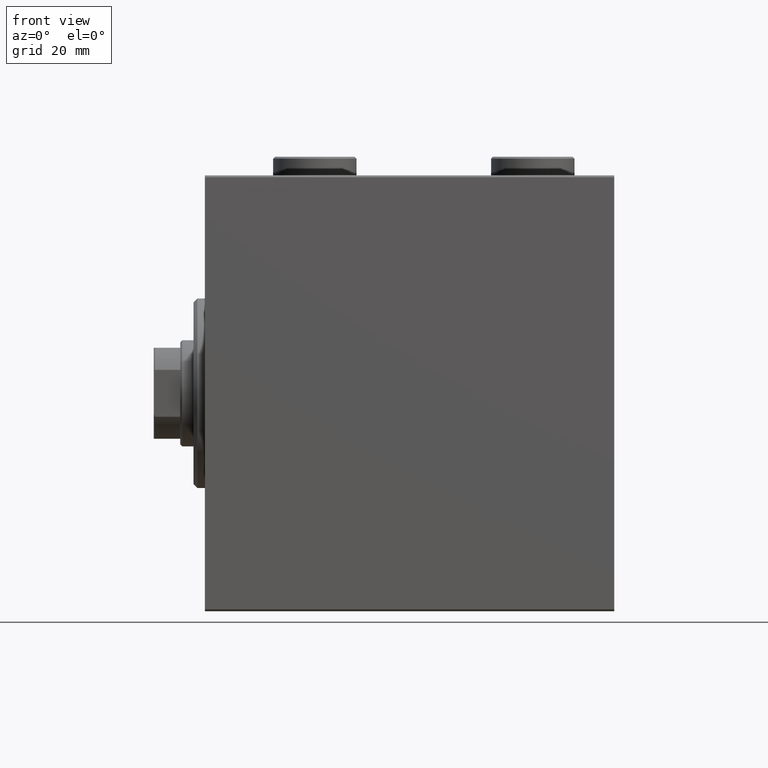
[diagram: clean part render]
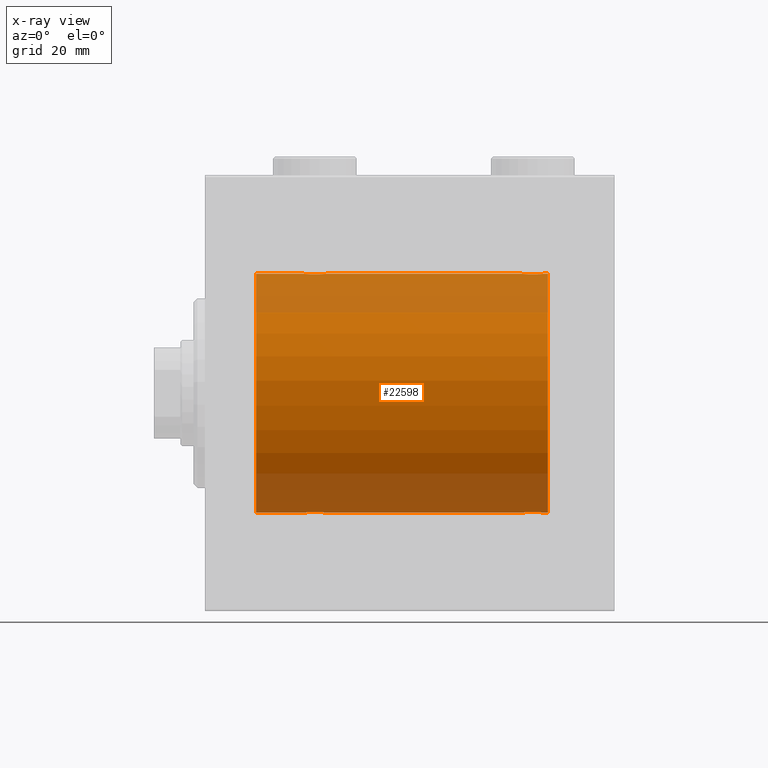
[diagram: x-ray — body ghosted, one internal face saturated and labeled with its STEP entity id]
A machine part, front view, then the same camera in x-ray: the body is ghosted and one INTERNAL B-rep face — a face not visible from any outside direction — is saturated and labeled: STEP entity #22598.
In plain terms, the highlighted cylindrical surface (partial cylindrical patch) has radius 31.5 mm, axis along (-1, -0, -0).
Its self-contained STEP definition (entity closure, byte-faithful):
#100 = CARTESIAN_POINT ( 'NONE',  ( 84.51856537126954549, -2.261012035264799103, -31.41905495618427224 ) ) ;
#257 = VERTEX_POINT ( 'NONE', #11740 ) ;
#324 = CARTESIAN_POINT ( 'NONE',  ( 83.89807859560842473, -1.506272792558335683, -31.46439306106695710 ) ) ;
#448 = CARTESIAN_POINT ( 'NONE',  ( 30.98143462873041898, -2.261012035264782227, 31.41905495618429356 ) ) ;
#500 = CARTESIAN_POINT ( 'NONE',  ( 90.50000000000000000, 0.000000000000000000, 31.50000000000000000 ) ) ;
#671 = CARTESIAN_POINT ( 'NONE',  ( 86.89114547339943329, -2.980809450819711159, 31.35867074198615967 ) ) ;
#689 = CARTESIAN_POINT ( 'NONE',  ( 31.92020662950040943, -0.7905881588836116691, 31.49214662150068378 ) ) ;
#810 = CARTESIAN_POINT ( 'NONE',  ( 26.00000000000000355, -4.219962720039639025E-15, -31.50000000000000000 ) ) ;
#1057 = B_SPLINE_CURVE_WITH_KNOTS ( 'NONE', 3,
 ( #32545, #14314, #42277, #35088, #7403, #21478, #24943, #42960, #3702, #17787, #21934, #14085, #14995, #28380, #29064, #7180, #3473, #10635, #24706, #11088, #39255, #28617, #18010, #38570, #448, #42737, #25163, #7626, #14774, #689, #21701, #39484 ),
 .UNSPECIFIED., .F., .F.,
 ( 4, 2, 2, 2, 2, 2, 2, 2, 2, 2, 2, 2, 2, 2, 2, 4 ),
 ( 0.009384682587134639611, 0.009971088165454038837, 0.01055749374377343980, 0.01114389932209284076, 0.01173030490041223999, 0.01231671047873163921, 0.01290311605705104017, 0.01348952163537044113, 0.01407592721368984036, 0.01466233279200923958, 0.01524873837032864055, 0.01583514394864804151, 0.01642154952696744247, 0.01700795510528683996, 0.01759436068360624092, 0.01876717184024503243 ),
 .UNSPECIFIED. ) ;
#1338 = VERTEX_POINT ( 'NONE', #42542 ) ;
#1548 = AXIS2_PLACEMENT_3D ( 'NONE', #41962, #13773, #24393 ) ;
#1628 = EDGE_LOOP ( 'NONE', ( #27902, #23269, #37690, #27047, #38304, #32164, #12303, #42352, #30345, #38890, #25175, #25027 ) ) ;
#2400 = VERTEX_POINT ( 'NONE', #6245 ) ;
#2920 = CARTESIAN_POINT ( 'NONE',  ( 29.96944455658522699, -2.845838211243328697, -31.37127560316187314 ) ) ;
#3120 = CARTESIAN_POINT ( 'NONE',  ( 84.24175498096732895, -1.984587626072091160, -31.43772577203671048 ) ) ;
#3349 = CARTESIAN_POINT ( 'NONE',  ( 86.89534111000095606, -2.980257240990069167, -31.35872356503797320 ) ) ;
#3473 = CARTESIAN_POINT ( 'NONE',  ( 28.79953541025904684, -2.999845816735297266, 31.35683219171744796 ) ) ;
#3562 = CARTESIAN_POINT ( 'NONE',  ( 90.50000000000000000, 0.000000000000000000, 0.000000000000000000 ) ) ;
#3702 = CARTESIAN_POINT ( 'NONE',  ( 26.73904537543869608, -1.981494824113328779, 31.43792153503155973 ) ) ;
#4165 = B_SPLINE_CURVE_WITH_KNOTS ( 'NONE', 3,
 ( #17545, #20551, #45725, #13158, #34146, #14063, #24236, #9471, #23539, #37626, #20077, #27457, #27227, #41337, #9694, #23997, #34616, #7834, #671, #24926, #10844, #35530, #18225, #42938, #39017, #18674, #35305, #17993, #38781, #32067, #42486, #25142 ),
 .UNSPECIFIED., .F., .F.,
 ( 4, 2, 2, 2, 2, 2, 2, 2, 2, 2, 2, 2, 2, 2, 2, 4 ),
 ( 0.009384682587134660428, 0.009971088165454063124, 0.01055749374377346582, 0.01114389932209286851, 0.01173030490041227121, 0.01231671047873167217, 0.01290311605705107313, 0.01348952163537047583, 0.01407592721368987679, 0.01466233279200927775, 0.01524873837032867871, 0.01583514394864807967, 0.01642154952696748410, 0.01700795510528688506, 0.01759436068360628602, 0.01876717184024507407 ),
 .UNSPECIFIED. ) ;
#4213 = LINE ( 'NONE', #18064, #13672 ) ;
#4292 = CARTESIAN_POINT ( 'NONE',  ( 26.61753127733370050, -1.833765390051043775, -31.44700610425689291 ) ) ;
#4657 = CARTESIAN_POINT ( 'NONE',  ( 89.50000000000001421, -0.1958045626907434222, -31.50000000000000711 ) ) ;
#4759 = CARTESIAN_POINT ( 'NONE',  ( 90.50000000000000000, 3.857637417314162689E-15, -31.50000000000000000 ) ) ;
#4772 = EDGE_CURVE ( 'NONE', #14931, #2400, #4165, .T. ) ;
#5317 = EDGE_CURVE ( 'NONE', #24467, #26726, #21473, .T. ) ;
#6172 = CARTESIAN_POINT ( 'NONE',  ( 26.00000000000000355, -2.117263226567934635E-23, 31.50000000000000000 ) ) ;
#6245 = CARTESIAN_POINT ( 'NONE',  ( 89.50000000000000000, -2.415502498297804861E-16, 31.50000000000000000 ) ) ;
#6265 = DIRECTION ( 'NONE',  ( -1.000000000000000000, -0.000000000000000000, -0.000000000000000000 ) ) ;
#6603 = CARTESIAN_POINT ( 'NONE',  ( 84.99901843703854354, -2.604888532024810299, -31.39229907792057972 ) ) ;
#6828 = CARTESIAN_POINT ( 'NONE',  ( 89.34660463742501690, -0.9669616078781998469, -31.48567319468627446 ) ) ;
#7180 = CARTESIAN_POINT ( 'NONE',  ( 28.60465888999904749, -2.980257240990054513, 31.35872356503797320 ) ) ;
#7403 = CARTESIAN_POINT ( 'NONE',  ( 26.15339536257501507, -0.9669616078781987367, 31.48567319468626735 ) ) ;
#7626 = CARTESIAN_POINT ( 'NONE',  ( 31.60192140439154684, -1.506272792558323470, 31.46439306106697131 ) ) ;
#7834 = CARTESIAN_POINT ( 'NONE',  ( 86.69582294439439352, -3.000152387858496805, 31.35680286115500337 ) ) ;
#7856 = CYLINDRICAL_SURFACE ( 'NONE', #18852, 31.50000000000000000 ) ;
#9381 = CARTESIAN_POINT ( 'NONE',  ( 90.50000000000000000, 3.857637417314162689E-15, -31.50000000000000000 ) ) ;
#9401 = CARTESIAN_POINT ( 'NONE',  ( 31.26095462456130747, -1.981494824113323894, -31.43792153503156683 ) ) ;
#9471 = CARTESIAN_POINT ( 'NONE',  ( 84.11498557723071201, -1.830470878313887884, 31.44719957596828053 ) ) ;
#9694 = CARTESIAN_POINT ( 'NONE',  ( 85.72118087357682725, -2.903733559410697662, 31.36590199989305106 ) ) ;
#9848 = CARTESIAN_POINT ( 'NONE',  ( 29.77881912642320827, -2.903733559410676790, -31.36590199989303684 ) ) ;
#10053 = CARTESIAN_POINT ( 'NONE',  ( 87.27881912642318696, -2.903733559410696774, -31.36590199989303684 ) ) ;
#10077 = CARTESIAN_POINT ( 'NONE',  ( 27.67134585312493655, -2.696917666262905300, -31.38442820068732786 ) ) ;
#10303 = CARTESIAN_POINT ( 'NONE',  ( 90.50000000000000000, 0.000000000000000000, 31.50000000000000000 ) ) ;
#10312 = CARTESIAN_POINT ( 'NONE',  ( 27.17295774629732819, -2.387531469909772941, -31.40957782495775419 ) ) ;
#10513 = CARTESIAN_POINT ( 'NONE',  ( 89.40419450738056639, -0.7775502215293851327, -31.49099686045559565 ) ) ;
#10523 = EDGE_CURVE ( 'NONE', #16547, #44811, #20230, .T. ) ;
#10635 = CARTESIAN_POINT ( 'NONE',  ( 29.19582294439440417, -3.000152387858486147, 31.35680286115499626 ) ) ;
#10844 = CARTESIAN_POINT ( 'NONE',  ( 87.46515729810640494, -2.847307171789044133, 31.37114183851420890 ) ) ;
#10949 = CARTESIAN_POINT ( 'NONE',  ( 13.49999999999999822, 0.000000000000000000, 31.50000000000000000 ) ) ;
#11088 = CARTESIAN_POINT ( 'NONE',  ( 29.77469094434372821, -2.904836261170106404, 31.36579955910873707 ) ) ;
#11614 = EDGE_CURVE ( 'NONE', #24507, #39819, #32657, .T. ) ;
#11721 = CARTESIAN_POINT ( 'NONE',  ( 90.50000000000000000, 0.000000000000000000, 31.50000000000000000 ) ) ;
#11740 = CARTESIAN_POINT ( 'NONE',  ( 83.49999999999998579, -1.354660151018645615E-14, -31.50000000000000000 ) ) ;
#11988 = CARTESIAN_POINT ( 'NONE',  ( 83.49999999999998579, -2.116947682205846230E-23, 31.50000000000000000 ) ) ;
#12303 = ORIENTED_EDGE ( 'NONE', *, *, #5317, .T. ) ;
#13042 = CARTESIAN_POINT ( 'NONE',  ( 32.00000000000000000, -3.906065418435112189E-16, 31.50000000000000000 ) ) ;
#13084 = CARTESIAN_POINT ( 'NONE',  ( 31.60417781274729165, -1.502389880412994261, -31.46458023642406587 ) ) ;
#13114 = VECTOR ( 'NONE', #21853, 1000.000000000000000 ) ;
#13158 = CARTESIAN_POINT ( 'NONE',  ( 83.59580549261943361, -0.7775502215293907948, 31.49099686045558855 ) ) ;
#13308 = CARTESIAN_POINT ( 'NONE',  ( 30.83043691487003102, -2.384935707362432211, -31.40977595730573668 ) ) ;
#13511 = CARTESIAN_POINT ( 'NONE',  ( 89.50000000000000000, 3.857637396143758955E-15, -31.50000000000000000 ) ) ;
#13536 = CARTESIAN_POINT ( 'NONE',  ( 31.69714238836700915, -1.328004386210300591, -31.47251238182141009 ) ) ;
#13672 = VECTOR ( 'NONE', #21991, 1000.000000000000000 ) ;
#13773 = DIRECTION ( 'NONE',  ( -1.000000000000000000, 0.000000000000000000, 0.000000000000000000 ) ) ;
#14063 = CARTESIAN_POINT ( 'NONE',  ( 83.80285761163298730, -1.328004386210315024, 31.47251238182141719 ) ) ;
#14085 = CARTESIAN_POINT ( 'NONE',  ( 27.49543714993000876, -2.602826974226395862, 31.39247100434485560 ) ) ;
#14314 = CARTESIAN_POINT ( 'NONE',  ( 26.00000000000001066, -0.1958045626907463088, 31.50000000000000711 ) ) ;
#14419 = CARTESIAN_POINT ( 'NONE',  ( 85.53484270189359506, -2.847307171789053903, -31.37114183851420179 ) ) ;
#14677 = B_SPLINE_CURVE_WITH_KNOTS ( 'NONE', 3,
 ( #13511, #4657, #20674, #10513, #6828, #17437, #34970, #24814, #17209, #17895, #31277, #27580, #41931, #41694, #10053, #3349, #31519, #24585, #34744, #24136, #14419, #45387, #6603, #38912, #100, #3120, #31966, #324, #24364, #38450, #45625, #28263 ),
 .UNSPECIFIED., .F., .F.,
 ( 4, 2, 2, 2, 2, 2, 2, 2, 2, 2, 2, 2, 2, 2, 2, 4 ),
 ( 0.009384682587134677775, 0.009971088165454078736, 0.01055749374377348143, 0.01114389932209288239, 0.01173030490041228509, 0.01231671047873168778, 0.01290311605705108874, 0.01348952163537048970, 0.01407592721368989067, 0.01466233279200929336, 0.01524873837032869606, 0.01583514394864809702, 0.01642154952696749798, 0.01700795510528689894, 0.01759436068360629990, 0.01876717184024510529 ),
 .UNSPECIFIED. ) ;
#14774 = CARTESIAN_POINT ( 'NONE',  ( 31.69529642359010424, -1.331741824817659348, 31.47235367475393630 ) ) ;
#14901 = CARTESIAN_POINT ( 'NONE',  ( 26.30470357640990642, -1.331741824817663344, -31.47235367475394341 ) ) ;
#14931 = VERTEX_POINT ( 'NONE', #11988 ) ;
#14995 = CARTESIAN_POINT ( 'NONE',  ( 27.66760041900836953, -2.695056442718533507, 31.38458855656185875 ) ) ;
#15686 = EDGE_CURVE ( 'NONE', #39819, #2400, #22790, .T. ) ;
#16024 = CARTESIAN_POINT ( 'NONE',  ( 90.50000000000000000, 3.857637417314162689E-15, -31.50000000000000000 ) ) ;
#16199 = LINE ( 'NONE', #27256, #26839 ) ;
#16547 = VERTEX_POINT ( 'NONE', #31766 ) ;
#16778 = CARTESIAN_POINT ( 'NONE',  ( 31.98101509391517538, -0.3904857149112004322, -31.49817436802766224 ) ) ;
#17209 = CARTESIAN_POINT ( 'NONE',  ( 88.76095462456133589, -1.981494824113334774, -31.43792153503157394 ) ) ;
#17230 = CARTESIAN_POINT ( 'NONE',  ( 27.49901843703855775, -2.604888532024790759, -31.39229907792058683 ) ) ;
#17362 = VERTEX_POINT ( 'NONE', #6172 ) ;
#17437 = CARTESIAN_POINT ( 'NONE',  ( 89.19714238836702691, -1.328004386210309251, -31.47251238182141719 ) ) ;
#17545 = CARTESIAN_POINT ( 'NONE',  ( 83.49999999999998579, -2.116947682205846230E-23, 31.50000000000000000 ) ) ;
#17696 = VERTEX_POINT ( 'NONE', #13042 ) ;
#17787 = CARTESIAN_POINT ( 'NONE',  ( 27.01539640075335669, -2.258226318633785201, 31.41925597582825702 ) ) ;
#17895 = CARTESIAN_POINT ( 'NONE',  ( 88.48460359924666818, -2.258226318633792751, -31.41925597582826413 ) ) ;
#17993 = CARTESIAN_POINT ( 'NONE',  ( 89.10192140439151842, -1.506272792558327245, 31.46439306106695710 ) ) ;
#18010 = CARTESIAN_POINT ( 'NONE',  ( 30.50098156296146712, -2.604888532024788983, 31.39229907792058683 ) ) ;
#18064 = CARTESIAN_POINT ( 'NONE',  ( 90.50000000000000000, 3.857637417314162689E-15, -31.50000000000000000 ) ) ;
#18225 = CARTESIAN_POINT ( 'NONE',  ( 88.00098156296147067, -2.604888532024798309, 31.39229907792057972 ) ) ;
#18554 = DIRECTION ( 'NONE',  ( -1.000000000000000000, 0.000000000000000000, 0.000000000000000000 ) ) ;
#18618 = LINE ( 'NONE', #4759, #13114 ) ;
#18674 = CARTESIAN_POINT ( 'NONE',  ( 88.75824501903265684, -1.984587626072075617, 31.43772577203671759 ) ) ;
#18852 = AXIS2_PLACEMENT_3D ( 'NONE', #44264, #43414, #40795 ) ;
#20077 = CARTESIAN_POINT ( 'NONE',  ( 84.66956308512997964, -2.384935707362449087, 31.40977595730572958 ) ) ;
#20230 = B_SPLINE_CURVE_WITH_KNOTS ( 'NONE', 3,
 ( #45188, #41033, #16778, #44963, #30611, #13536, #13084, #27156, #9401, #41954, #13308, #27377, #41491, #2920, #9848, #20700, #23918, #38008, #30384, #27606, #23466, #10077, #17230, #10312, #31304, #44499, #4292, #38937, #14901, #32449, #28288, #810 ),
 .UNSPECIFIED., .F., .F.,
 ( 4, 2, 2, 2, 2, 2, 2, 2, 2, 2, 2, 2, 2, 2, 2, 4 ),
 ( 0.009384682587134662163, 0.009971088165454068328, 0.01055749374377347449, 0.01114389932209287892, 0.01173030490041228509, 0.01231671047873168431, 0.01290311605705108181, 0.01348952163537047930, 0.01407592721368987852, 0.01466233279200927775, 0.01524873837032867524, 0.01583514394864807273, 0.01642154952696747369, 0.01700795510528686771, 0.01759436068360626521, 0.01876717184024506366 ),
 .UNSPECIFIED. ) ;
#20551 = CARTESIAN_POINT ( 'NONE',  ( 83.49999999999998579, -0.1958045626907495562, 31.50000000000000000 ) ) ;
#20674 = CARTESIAN_POINT ( 'NONE',  ( 89.48101509391514696, -0.3904857149112013204, -31.49817436802766224 ) ) ;
#20700 = CARTESIAN_POINT ( 'NONE',  ( 29.39534111000096672, -2.980257240990050516, -31.35872356503798741 ) ) ;
#21155 = VECTOR ( 'NONE', #38923, 1000.000000000000000 ) ;
#21473 = CIRCLE ( 'NONE', #1548, 31.50000000000000000 ) ;
#21478 = CARTESIAN_POINT ( 'NONE',  ( 26.30285761163300151, -1.328004386210305698, 31.47251238182140298 ) ) ;
#21701 = CARTESIAN_POINT ( 'NONE',  ( 32.00000000000001421, -0.3965830985361748495, 31.50000000000001421 ) ) ;
#21853 = DIRECTION ( 'NONE',  ( -1.000000000000000000, -0.000000000000000000, -0.000000000000000000 ) ) ;
#21934 = CARTESIAN_POINT ( 'NONE',  ( 27.16956308512997964, -2.384935707362437096, 31.40977595730572958 ) ) ;
#21991 = DIRECTION ( 'NONE',  ( -1.000000000000000000, -0.000000000000000000, -0.000000000000000000 ) ) ;
#22559 = DIRECTION ( 'NONE',  ( -1.000000000000000000, -0.000000000000000000, -0.000000000000000000 ) ) ;
#22598 = ADVANCED_FACE ( 'NONE', ( #28840 ), #7856, .F. ) ;
#22790 = LINE ( 'NONE', #11721, #31340 ) ;
#23002 = EDGE_CURVE ( 'NONE', #24507, #1338, #37256, .T. ) ;
#23269 = ORIENTED_EDGE ( 'NONE', *, *, #23002, .T. ) ;
#23466 = CARTESIAN_POINT ( 'NONE',  ( 28.03484270189360217, -2.847307171789032143, -31.37114183851420179 ) ) ;
#23539 = CARTESIAN_POINT ( 'NONE',  ( 84.23904537543867832, -1.981494824113344322, 31.43792153503156683 ) ) ;
#23918 = CARTESIAN_POINT ( 'NONE',  ( 29.20046458974096026, -2.999845816735291493, -31.35683219171744796 ) ) ;
#23997 = CARTESIAN_POINT ( 'NONE',  ( 86.10465888999905815, -2.980257240990066947, 31.35872356503798031 ) ) ;
#24136 = CARTESIAN_POINT ( 'NONE',  ( 85.72530905565625403, -2.904836261170121947, -31.36579955910872286 ) ) ;
#24236 = CARTESIAN_POINT ( 'NONE',  ( 83.89582218725269058, -1.502389880413010026, 31.46458023642405877 ) ) ;
#24364 = CARTESIAN_POINT ( 'NONE',  ( 83.80470357640989221, -1.331741824817675113, -31.47235367475394341 ) ) ;
#24393 = DIRECTION ( 'NONE',  ( 0.000000000000000000, 0.000000000000000000, 1.000000000000000000 ) ) ;
#24467 = VERTEX_POINT ( 'NONE', #33836 ) ;
#24507 = VERTEX_POINT ( 'NONE', #9381 ) ;
#24585 = CARTESIAN_POINT ( 'NONE',  ( 86.30417705560559227, -3.000152387858500802, -31.35680286115499626 ) ) ;
#24706 = CARTESIAN_POINT ( 'NONE',  ( 29.39114547339941552, -2.980809450819701834, 31.35867074198615967 ) ) ;
#24814 = CARTESIAN_POINT ( 'NONE',  ( 88.88501442276927378, -1.830470878313876781, -31.44719957596828763 ) ) ;
#24831 = EDGE_CURVE ( 'NONE', #17362, #17696, #1057, .T. ) ;
#24926 = CARTESIAN_POINT ( 'NONE',  ( 87.27469094434374597, -2.904836261170115730, 31.36579955910872997 ) ) ;
#24943 = CARTESIAN_POINT ( 'NONE',  ( 26.39582218725271900, -1.502389880413001144, 31.46458023642405166 ) ) ;
#25027 = ORIENTED_EDGE ( 'NONE', *, *, #15686, .F. ) ;
#25142 = CARTESIAN_POINT ( 'NONE',  ( 89.50000000000000000, -2.415502498297804861E-16, 31.50000000000000000 ) ) ;
#25163 = CARTESIAN_POINT ( 'NONE',  ( 31.38246872266631371, -1.833765390051040223, 31.44700610425690712 ) ) ;
#25175 = ORIENTED_EDGE ( 'NONE', *, *, #4772, .T. ) ;
#25539 = VECTOR ( 'NONE', #26628, 1000.000000000000000 ) ;
#25888 = CARTESIAN_POINT ( 'NONE',  ( 26.00000000000000355, -4.219962720039639025E-15, -31.50000000000000000 ) ) ;
#26181 = EDGE_CURVE ( 'NONE', #14931, #17696, #42627, .T. ) ;
#26628 = DIRECTION ( 'NONE',  ( -1.000000000000000000, -0.000000000000000000, -0.000000000000000000 ) ) ;
#26726 = VERTEX_POINT ( 'NONE', #10949 ) ;
#26839 = VECTOR ( 'NONE', #6265, 1000.000000000000000 ) ;
#27047 = ORIENTED_EDGE ( 'NONE', *, *, #32990, .T. ) ;
#27156 = CARTESIAN_POINT ( 'NONE',  ( 31.38501442276926667, -1.830470878313871008, -31.44719957596828763 ) ) ;
#27227 = CARTESIAN_POINT ( 'NONE',  ( 85.16760041900836598, -2.695056442718549494, 31.38458855656185875 ) ) ;
#27256 = CARTESIAN_POINT ( 'NONE',  ( 90.50000000000000000, 0.000000000000000000, 31.50000000000000000 ) ) ;
#27377 = CARTESIAN_POINT ( 'NONE',  ( 30.50456285006998414, -2.602826974226390977, -31.39247100434485560 ) ) ;
#27457 = CARTESIAN_POINT ( 'NONE',  ( 84.99543714992996968, -2.602826974226406076, 31.39247100434484850 ) ) ;
#27580 = CARTESIAN_POINT ( 'NONE',  ( 88.00456285007000190, -2.602826974226410961, -31.39247100434486271 ) ) ;
#27606 = CARTESIAN_POINT ( 'NONE',  ( 28.22530905565627179, -2.904836261170101519, -31.36579955910872286 ) ) ;
#27902 = ORIENTED_EDGE ( 'NONE', *, *, #11614, .F. ) ;
#28263 = CARTESIAN_POINT ( 'NONE',  ( 83.49999999999998579, -1.354660151018645615E-14, -31.50000000000000000 ) ) ;
#28288 = CARTESIAN_POINT ( 'NONE',  ( 26.00000000000001066, -0.3965830985361785688, -31.50000000000000711 ) ) ;
#28380 = CARTESIAN_POINT ( 'NONE',  ( 28.03055544341478722, -2.845838211243333138, 31.37127560316186603 ) ) ;
#28408 = EDGE_CURVE ( 'NONE', #1338, #257, #14677, .T. ) ;
#28617 = CARTESIAN_POINT ( 'NONE',  ( 30.32865414687508832, -2.696917666262907520, 31.38442820068731365 ) ) ;
#28840 = FACE_OUTER_BOUND ( 'NONE', #1628, .T. ) ;
#29064 = CARTESIAN_POINT ( 'NONE',  ( 28.22118087357680238, -2.903733559410683895, 31.36590199989303684 ) ) ;
#29306 = EDGE_CURVE ( 'NONE', #17362, #26726, #16199, .T. ) ;
#30345 = ORIENTED_EDGE ( 'NONE', *, *, #24831, .T. ) ;
#30384 = CARTESIAN_POINT ( 'NONE',  ( 28.60885452660059869, -2.980809450819697393, -31.35867074198615256 ) ) ;
#30611 = CARTESIAN_POINT ( 'NONE',  ( 31.84660463742499559, -0.9669616078781936297, -31.48567319468626735 ) ) ;
#31277 = CARTESIAN_POINT ( 'NONE',  ( 88.33043691486999194, -2.384935707362452195, -31.40977595730572247 ) ) ;
#31304 = CARTESIAN_POINT ( 'NONE',  ( 27.01856537126959168, -2.261012035264780451, -31.41905495618428645 ) ) ;
#31340 = VECTOR ( 'NONE', #22559, 1000.000000000000000 ) ;
#31519 = CARTESIAN_POINT ( 'NONE',  ( 86.70046458974097447, -2.999845816735310589, -31.35683219171744796 ) ) ;
#31766 = CARTESIAN_POINT ( 'NONE',  ( 32.00000000000000000, 3.857637396137448068E-15, -31.50000000000000000 ) ) ;
#31966 = CARTESIAN_POINT ( 'NONE',  ( 84.11753127733369695, -1.833765390051052657, -31.44700610425689291 ) ) ;
#32067 = CARTESIAN_POINT ( 'NONE',  ( 89.42020662950039878, -0.7905881588836165541, 31.49214662150069088 ) ) ;
#32164 = ORIENTED_EDGE ( 'NONE', *, *, #38127, .T. ) ;
#32449 = CARTESIAN_POINT ( 'NONE',  ( 26.07979337049960122, -0.7905881588836181084, -31.49214662150069799 ) ) ;
#32545 = CARTESIAN_POINT ( 'NONE',  ( 26.00000000000000355, -2.117263226567934635E-23, 31.50000000000000000 ) ) ;
#32657 = CIRCLE ( 'NONE', #41543, 31.50000000000000000 ) ;
#32990 = EDGE_CURVE ( 'NONE', #257, #16547, #4213, .T. ) ;
#33836 = CARTESIAN_POINT ( 'NONE',  ( 13.49999999999999822, 3.857637417314162689E-15, -31.50000000000000000 ) ) ;
#34146 = CARTESIAN_POINT ( 'NONE',  ( 83.65339536257499731, -0.9669616078782070634, 31.48567319468626735 ) ) ;
#34616 = CARTESIAN_POINT ( 'NONE',  ( 86.29953541025901131, -2.999845816735307036, 31.35683219171744796 ) ) ;
#34744 = CARTESIAN_POINT ( 'NONE',  ( 86.10885452660059514, -2.980809450819716933, -31.35867074198615967 ) ) ;
#34970 = CARTESIAN_POINT ( 'NONE',  ( 89.10417781274732363, -1.502389880412997147, -31.46458023642405877 ) ) ;
#35088 = CARTESIAN_POINT ( 'NONE',  ( 26.09580549261944427, -0.7775502215293862429, 31.49099686045558144 ) ) ;
#35305 = CARTESIAN_POINT ( 'NONE',  ( 88.88246872266633147, -1.833765390051044442, 31.44700610425689291 ) ) ;
#35530 = CARTESIAN_POINT ( 'NONE',  ( 87.82865414687509542, -2.696917666262913738, 31.38442820068732075 ) ) ;
#37256 = LINE ( 'NONE', #16024, #25539 ) ;
#37626 = CARTESIAN_POINT ( 'NONE',  ( 84.51539640075337445, -2.258226318633800300, 31.41925597582826413 ) ) ;
#37690 = ORIENTED_EDGE ( 'NONE', *, *, #28408, .T. ) ;
#38008 = CARTESIAN_POINT ( 'NONE',  ( 28.80417705560560648, -3.000152387858482150, -31.35680286115500337 ) ) ;
#38127 = EDGE_CURVE ( 'NONE', #44811, #24467, #18618, .T. ) ;
#38304 = ORIENTED_EDGE ( 'NONE', *, *, #10523, .T. ) ;
#38450 = CARTESIAN_POINT ( 'NONE',  ( 83.57979337049955859, -0.7905881588836273233, -31.49214662150069088 ) ) ;
#38570 = CARTESIAN_POINT ( 'NONE',  ( 30.82704225370267892, -2.387531469909770276, 31.40957782495776129 ) ) ;
#38781 = CARTESIAN_POINT ( 'NONE',  ( 89.19529642359012200, -1.331741824817663122, 31.47235367475394341 ) ) ;
#38890 = ORIENTED_EDGE ( 'NONE', *, *, #26181, .F. ) ;
#38912 = CARTESIAN_POINT ( 'NONE',  ( 84.67295774629731397, -2.387531469909792481, -31.40957782495775419 ) ) ;
#38923 = DIRECTION ( 'NONE',  ( -1.000000000000000000, -0.000000000000000000, -0.000000000000000000 ) ) ;
#38937 = CARTESIAN_POINT ( 'NONE',  ( 26.39807859560847803, -1.506272792558329021, -31.46439306106696421 ) ) ;
#39017 = CARTESIAN_POINT ( 'NONE',  ( 88.48143462873041187, -2.261012035264784892, 31.41905495618427935 ) ) ;
#39255 = CARTESIAN_POINT ( 'NONE',  ( 29.96515729810641204, -2.847307171789037028, 31.37114183851420890 ) ) ;
#39484 = CARTESIAN_POINT ( 'NONE',  ( 32.00000000000000000, -3.906065418435112189E-16, 31.50000000000000000 ) ) ;
#39819 = VERTEX_POINT ( 'NONE', #500 ) ;
#40795 = DIRECTION ( 'NONE',  ( 0.000000000000000000, 0.000000000000000000, 1.000000000000000000 ) ) ;
#41033 = CARTESIAN_POINT ( 'NONE',  ( 32.00000000000001421, -0.1958045626907420345, -31.50000000000000711 ) ) ;
#41337 = CARTESIAN_POINT ( 'NONE',  ( 85.53055544341479788, -2.845838211243349569, 31.37127560316188024 ) ) ;
#41491 = CARTESIAN_POINT ( 'NONE',  ( 30.33239958099164824, -2.695056442718528178, -31.38458855656186230 ) ) ;
#41543 = AXIS2_PLACEMENT_3D ( 'NONE', #3562, #18554, #42592 ) ;
#41694 = CARTESIAN_POINT ( 'NONE',  ( 87.46944455658521633, -2.845838211243347793, -31.37127560316186603 ) ) ;
#41931 = CARTESIAN_POINT ( 'NONE',  ( 87.83239958099163402, -2.695056442718546830, -31.38458855656186230 ) ) ;
#41954 = CARTESIAN_POINT ( 'NONE',  ( 30.98460359924664331, -2.258226318633780316, -31.41925597582826413 ) ) ;
#41962 = CARTESIAN_POINT ( 'NONE',  ( 13.49999999999999822, 0.000000000000000000, 0.000000000000000000 ) ) ;
#42277 = CARTESIAN_POINT ( 'NONE',  ( 26.01898490608483527, -0.3904857149112033743, 31.49817436802766935 ) ) ;
#42352 = ORIENTED_EDGE ( 'NONE', *, *, #29306, .F. ) ;
#42486 = CARTESIAN_POINT ( 'NONE',  ( 89.49999999999998579, -0.3965830985361750161, 31.50000000000000000 ) ) ;
#42542 = CARTESIAN_POINT ( 'NONE',  ( 89.50000000000000000, 3.857637396143758955E-15, -31.50000000000000000 ) ) ;
#42592 = DIRECTION ( 'NONE',  ( 0.000000000000000000, 0.000000000000000000, 1.000000000000000000 ) ) ;
#42627 = LINE ( 'NONE', #10303, #21155 ) ;
#42737 = CARTESIAN_POINT ( 'NONE',  ( 31.25824501903266039, -1.984587626072074285, 31.43772577203672469 ) ) ;
#42938 = CARTESIAN_POINT ( 'NONE',  ( 88.32704225370268603, -2.387531469909779158, 31.40957782495775419 ) ) ;
#42960 = CARTESIAN_POINT ( 'NONE',  ( 26.61498557723073333, -1.830470878313877892, 31.44719957596828053 ) ) ;
#43414 = DIRECTION ( 'NONE',  ( -1.000000000000000000, -0.000000000000000000, -0.000000000000000000 ) ) ;
#44264 = CARTESIAN_POINT ( 'NONE',  ( 90.50000000000000000, 0.000000000000000000, 0.000000000000000000 ) ) ;
#44499 = CARTESIAN_POINT ( 'NONE',  ( 26.74175498096733961, -1.984587626072072952, -31.43772577203672469 ) ) ;
#44811 = VERTEX_POINT ( 'NONE', #25888 ) ;
#44963 = CARTESIAN_POINT ( 'NONE',  ( 31.90419450738055218, -0.7775502215293830233, -31.49099686045559565 ) ) ;
#45188 = CARTESIAN_POINT ( 'NONE',  ( 32.00000000000000000, 3.857637396137448068E-15, -31.50000000000000000 ) ) ;
#45387 = CARTESIAN_POINT ( 'NONE',  ( 85.17134585312489037, -2.696917666262924840, -31.38442820068731365 ) ) ;
#45625 = CARTESIAN_POINT ( 'NONE',  ( 83.49999999999998579, -0.3965830985361872840, -31.50000000000000711 ) ) ;
#45725 = CARTESIAN_POINT ( 'NONE',  ( 83.51898490608482462, -0.3904857149112073711, 31.49817436802766935 ) ) ;